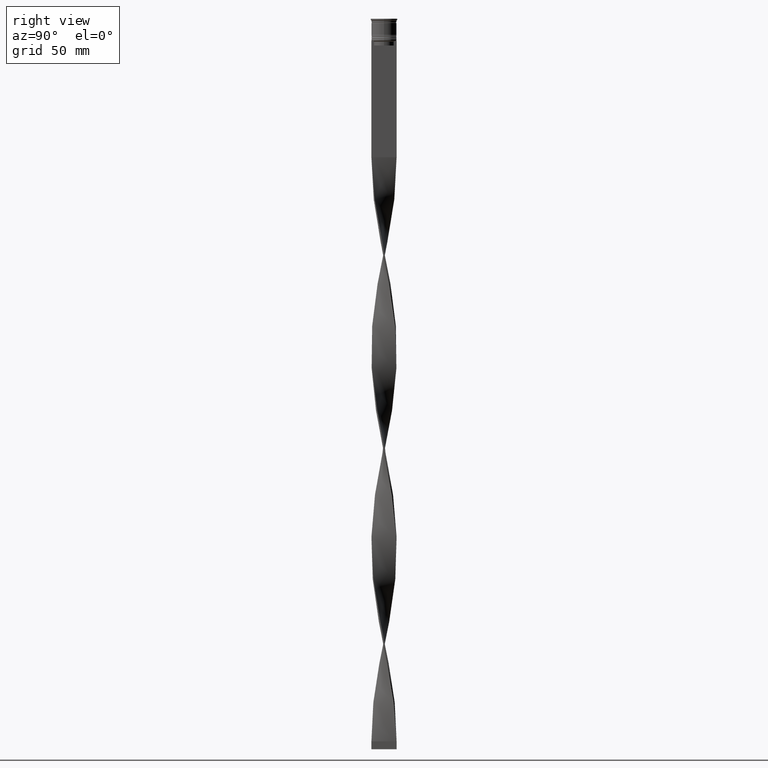
[diagram: clean part render]
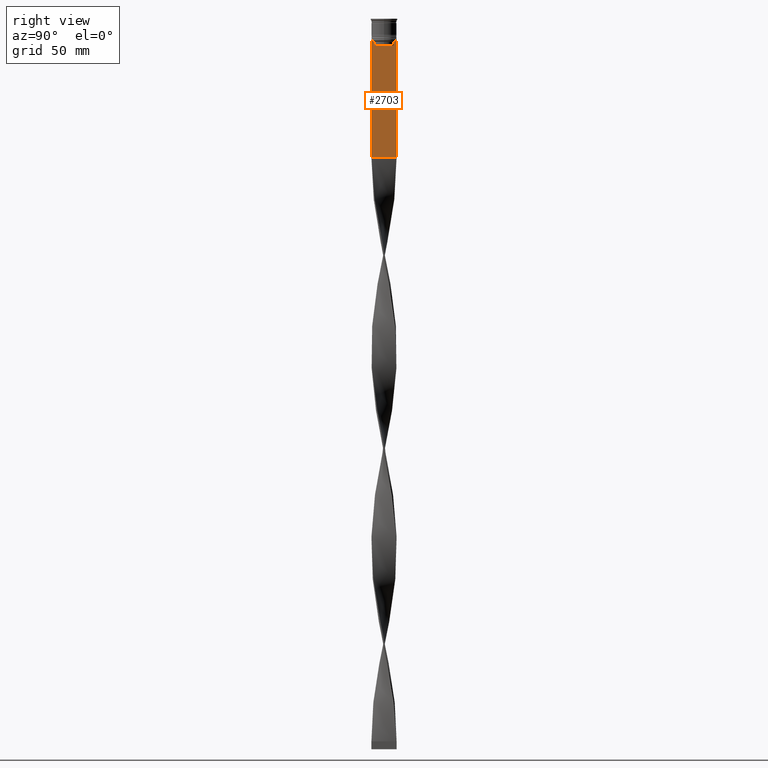
[diagram: same view with one face highlighted and labeled with its STEP entity id]
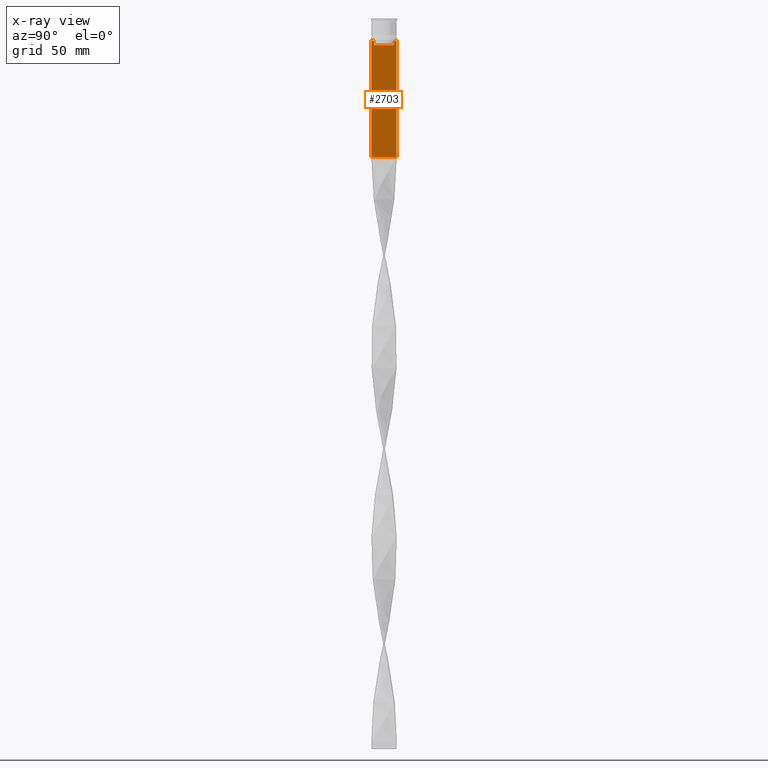
[diagram: x-ray of the same camera — body ghosted, the highlighted face saturated]
A machine part, right view. The second image highlights one B-rep face of the part: STEP entity #2703.
The next image is the same camera in x-ray: the body ghosted, the highlighted face saturated — about 0% of this face is hidden behind the body in this view.
In plain terms, the highlighted planar face has unit normal (-1, 0, 0).
Its self-contained STEP definition (entity closure, byte-faithful):
#6 = ORIENTED_EDGE ( 'NONE', *, *, #1185, .T. ) ;
#55 = CARTESIAN_POINT ( 'NONE',  ( 0.5000000000000001110, 7.999999999999996447, -88.00000000000000000 ) ) ;
#69 = EDGE_CURVE ( 'NONE', #3856, #2104, #3453, .T. ) ;
#110 = DIRECTION ( 'NONE',  ( 0.000000000000000000, 0.000000000000000000, -1.000000000000000000 ) ) ;
#178 = CARTESIAN_POINT ( 'NONE',  ( 0.5000000000000001110, -6.714736947305993908, -14.16668390685738821 ) ) ;
#181 = PLANE ( 'NONE',  #3051 ) ;
#280 = EDGE_CURVE ( 'NONE', #3390, #4104, #339, .T. ) ;
#299 = EDGE_CURVE ( 'NONE', #2066, #3856, #550, .T. ) ;
#328 = VECTOR ( 'NONE', #856, 1000.000000000000000 ) ;
#339 = B_SPLINE_CURVE_WITH_KNOTS ( 'NONE', 3,
 ( #3540, #1880, #178, #1527 ),
 .UNSPECIFIED., .F., .F.,
 ( 4, 4 ),
 ( 0.02996184199614751464, 0.03067452609193705923 ),
 .UNSPECIFIED. ) ;
#408 = ORIENTED_EDGE ( 'NONE', *, *, #819, .T. ) ;
#489 = DIRECTION ( 'NONE',  ( -0.000000000000000000, -0.000000000000000000, 1.000000000000000000 ) ) ;
#550 = LINE ( 'NONE', #3213, #2682 ) ;
#559 = DIRECTION ( 'NONE',  ( 0.000000000000000000, 0.000000000000000000, -1.000000000000000000 ) ) ;
#565 = CARTESIAN_POINT ( 'NONE',  ( 0.5000000000000001110, -8.000000000000003553, -14.00000000000000178 ) ) ;
#591 = LINE ( 'NONE', #616, #1933 ) ;
#616 = CARTESIAN_POINT ( 'NONE',  ( 0.5000000000000001110, 6.399999999999999467, -17.00000000000000000 ) ) ;
#774 = DIRECTION ( 'NONE',  ( 0.000000000000000000, -1.000000000000000000, 0.000000000000000000 ) ) ;
#778 = CARTESIAN_POINT ( 'NONE',  ( 0.5000000000000001110, -8.000000000000003553, -14.00000000000000178 ) ) ;
#819 = EDGE_CURVE ( 'NONE', #2431, #4252, #3137, .T. ) ;
#837 = LINE ( 'NONE', #1836, #877 ) ;
#847 = LINE ( 'NONE', #2849, #1240 ) ;
#856 = DIRECTION ( 'NONE',  ( 0.000000000000000000, 1.000000000000000000, 0.000000000000000000 ) ) ;
#877 = VECTOR ( 'NONE', #2150, 1000.000000000000000 ) ;
#899 = DIRECTION ( 'NONE',  ( 0.000000000000000000, -1.000000000000000000, 0.000000000000000000 ) ) ;
#935 = CARTESIAN_POINT ( 'NONE',  ( 0.5000000000000001110, 6.380438856379708312, -14.50000000000000000 ) ) ;
#1022 = EDGE_CURVE ( 'NONE', #2066, #3511, #837, .T. ) ;
#1175 = CARTESIAN_POINT ( 'NONE',  ( 0.5000000000000001110, 6.380438856379708312, -14.50000000000000000 ) ) ;
#1185 = EDGE_CURVE ( 'NONE', #1974, #1260, #4137, .T. ) ;
#1240 = VECTOR ( 'NONE', #559, 1000.000000000000000 ) ;
#1260 = VERTEX_POINT ( 'NONE', #1778 ) ;
#1402 = CARTESIAN_POINT ( 'NONE',  ( 0.5000000000000001110, 6.380438856379708312, 0.000000000000000000 ) ) ;
#1432 = VERTEX_POINT ( 'NONE', #3304 ) ;
#1527 = CARTESIAN_POINT ( 'NONE',  ( 0.5000000000000001110, -6.881860213634098500, -14.00000000000000178 ) ) ;
#1540 = ORIENTED_EDGE ( 'NONE', *, *, #4182, .T. ) ;
#1564 = CARTESIAN_POINT ( 'NONE',  ( 0.5000000000000001110, 6.547597841304911626, -14.33335192459222718 ) ) ;
#1630 = VECTOR ( 'NONE', #774, 1000.000000000000000 ) ;
#1643 = CARTESIAN_POINT ( 'NONE',  ( 0.5000000000000001110, 7.999999999999996447, -14.00000000000000178 ) ) ;
#1655 = EDGE_CURVE ( 'NONE', #4104, #2431, #1876, .T. ) ;
#1686 = ORIENTED_EDGE ( 'NONE', *, *, #69, .T. ) ;
#1710 = DIRECTION ( 'NONE',  ( 0.000000000000000000, -1.000000000000000000, 0.000000000000000000 ) ) ;
#1733 = CARTESIAN_POINT ( 'NONE',  ( 0.5000000000000001110, -8.000000000000003553, -14.00000000000000178 ) ) ;
#1773 = EDGE_CURVE ( 'NONE', #2104, #1974, #2387, .T. ) ;
#1778 = CARTESIAN_POINT ( 'NONE',  ( 0.5000000000000001110, 6.380438856379708312, -17.00000000000000000 ) ) ;
#1782 = CARTESIAN_POINT ( 'NONE',  ( 0.5000000000000001110, 7.884161337770806632, -14.00000000000000178 ) ) ;
#1815 = ORIENTED_EDGE ( 'NONE', *, *, #299, .T. ) ;
#1836 = CARTESIAN_POINT ( 'NONE',  ( 0.5000000000000001110, 7.999999999999996447, 2.031219541881394530 ) ) ;
#1865 = ORIENTED_EDGE ( 'NONE', *, *, #3004, .T. ) ;
#1876 = LINE ( 'NONE', #565, #2619 ) ;
#1880 = CARTESIAN_POINT ( 'NONE',  ( 0.5000000000000001110, -6.547597841511247019, -14.33335192438652150 ) ) ;
#1909 = CARTESIAN_POINT ( 'NONE',  ( 0.5000000000000001110, -6.380438856379708312, -14.50000000000000000 ) ) ;
#1933 = VECTOR ( 'NONE', #2205, 1000.000000000000000 ) ;
#1974 = VERTEX_POINT ( 'NONE', #1175 ) ;
#2044 = LINE ( 'NONE', #2414, #3958 ) ;
#2066 = VERTEX_POINT ( 'NONE', #1643 ) ;
#2104 = VERTEX_POINT ( 'NONE', #2985 ) ;
#2106 = CARTESIAN_POINT ( 'NONE',  ( 0.5000000000000001110, -8.000000000000003553, -88.00000000000000000 ) ) ;
#2125 = EDGE_CURVE ( 'NONE', #1432, #3390, #2044, .T. ) ;
#2128 = DIRECTION ( 'NONE',  ( 0.000000000000000000, 0.000000000000000000, 1.000000000000000000 ) ) ;
#2150 = DIRECTION ( 'NONE',  ( 0.000000000000000000, 0.000000000000000000, -1.000000000000000000 ) ) ;
#2205 = DIRECTION ( 'NONE',  ( 0.000000000000000000, -1.000000000000000000, 0.000000000000000000 ) ) ;
#2251 = ORIENTED_EDGE ( 'NONE', *, *, #1022, .F. ) ;
#2387 = B_SPLINE_CURVE_WITH_KNOTS ( 'NONE', 3,
 ( #3931, #2640, #1564, #935 ),
 .UNSPECIFIED., .F., .F.,
 ( 4, 4 ),
 ( 0.01172465562756038263, 0.01243276816391822651 ),
 .UNSPECIFIED. ) ;
#2396 = VERTEX_POINT ( 'NONE', #4130 ) ;
#2414 = CARTESIAN_POINT ( 'NONE',  ( 0.5000000000000001110, -6.380438856379708312, 0.000000000000000000 ) ) ;
#2431 = VERTEX_POINT ( 'NONE', #3423 ) ;
#2438 = ORIENTED_EDGE ( 'NONE', *, *, #1773, .T. ) ;
#2459 = CARTESIAN_POINT ( 'NONE',  ( 0.5000000000000001110, -8.000000000000003553, 2.031219541881394530 ) ) ;
#2476 = DIRECTION ( 'NONE',  ( -1.000000000000000000, 0.000000000000000000, 0.000000000000000000 ) ) ;
#2519 = CARTESIAN_POINT ( 'NONE',  ( 0.5000000000000001110, -6.881860213634098500, -14.00000000000000178 ) ) ;
#2596 = EDGE_CURVE ( 'NONE', #2396, #3511, #3484, .T. ) ;
#2619 = VECTOR ( 'NONE', #3209, 1000.000000000000000 ) ;
#2640 = CARTESIAN_POINT ( 'NONE',  ( 0.5000000000000001110, 6.714736947114692711, -14.16668390704818847 ) ) ;
#2682 = VECTOR ( 'NONE', #899, 1000.000000000000000 ) ;
#2703 = ADVANCED_FACE ( 'NONE', ( #3434 ), #181, .F. ) ;
#2849 = CARTESIAN_POINT ( 'NONE',  ( 0.5000000000000001110, -8.000000000000003553, 2.031219541881394530 ) ) ;
#2985 = CARTESIAN_POINT ( 'NONE',  ( 0.5000000000000001110, 6.881860213634098500, -14.00000000000000178 ) ) ;
#3004 = EDGE_CURVE ( 'NONE', #1260, #1432, #591, .T. ) ;
#3042 = ORIENTED_EDGE ( 'NONE', *, *, #280, .T. ) ;
#3051 = AXIS2_PLACEMENT_3D ( 'NONE', #2459, #2476, #2128 ) ;
#3114 = VECTOR ( 'NONE', #110, 1000.000000000000000 ) ;
#3137 = LINE ( 'NONE', #778, #4296 ) ;
#3180 = CARTESIAN_POINT ( 'NONE',  ( 0.5000000000000001110, -8.000000000000003553, -14.00000000000000178 ) ) ;
#3209 = DIRECTION ( 'NONE',  ( 0.000000000000000000, -1.000000000000000000, 0.000000000000000000 ) ) ;
#3213 = CARTESIAN_POINT ( 'NONE',  ( 0.5000000000000001110, -8.000000000000003553, -14.00000000000000178 ) ) ;
#3304 = CARTESIAN_POINT ( 'NONE',  ( 0.5000000000000001110, -6.380438856379708312, -17.00000000000000000 ) ) ;
#3390 = VERTEX_POINT ( 'NONE', #1909 ) ;
#3423 = CARTESIAN_POINT ( 'NONE',  ( 0.5000000000000001110, -7.884161337770806632, -14.00000000000000178 ) ) ;
#3434 = FACE_OUTER_BOUND ( 'NONE', #4029, .T. ) ;
#3453 = LINE ( 'NONE', #1733, #1630 ) ;
#3484 = LINE ( 'NONE', #2106, #328 ) ;
#3511 = VERTEX_POINT ( 'NONE', #55 ) ;
#3522 = ORIENTED_EDGE ( 'NONE', *, *, #2125, .T. ) ;
#3540 = CARTESIAN_POINT ( 'NONE',  ( 0.5000000000000001110, -6.380438856379708312, -14.50000000000000000 ) ) ;
#3856 = VERTEX_POINT ( 'NONE', #1782 ) ;
#3931 = CARTESIAN_POINT ( 'NONE',  ( 0.5000000000000001110, 6.881860213634098500, -14.00000000000000178 ) ) ;
#3958 = VECTOR ( 'NONE', #489, 1000.000000000000000 ) ;
#3988 = ORIENTED_EDGE ( 'NONE', *, *, #1655, .T. ) ;
#4029 = EDGE_LOOP ( 'NONE', ( #1686, #2438, #6, #1865, #3522, #3042, #3988, #408, #1540, #4330, #2251, #1815 ) ) ;
#4104 = VERTEX_POINT ( 'NONE', #2519 ) ;
#4130 = CARTESIAN_POINT ( 'NONE',  ( 0.5000000000000001110, -8.000000000000003553, -88.00000000000000000 ) ) ;
#4137 = LINE ( 'NONE', #1402, #3114 ) ;
#4182 = EDGE_CURVE ( 'NONE', #4252, #2396, #847, .T. ) ;
#4252 = VERTEX_POINT ( 'NONE', #3180 ) ;
#4296 = VECTOR ( 'NONE', #1710, 1000.000000000000000 ) ;
#4330 = ORIENTED_EDGE ( 'NONE', *, *, #2596, .T. ) ;